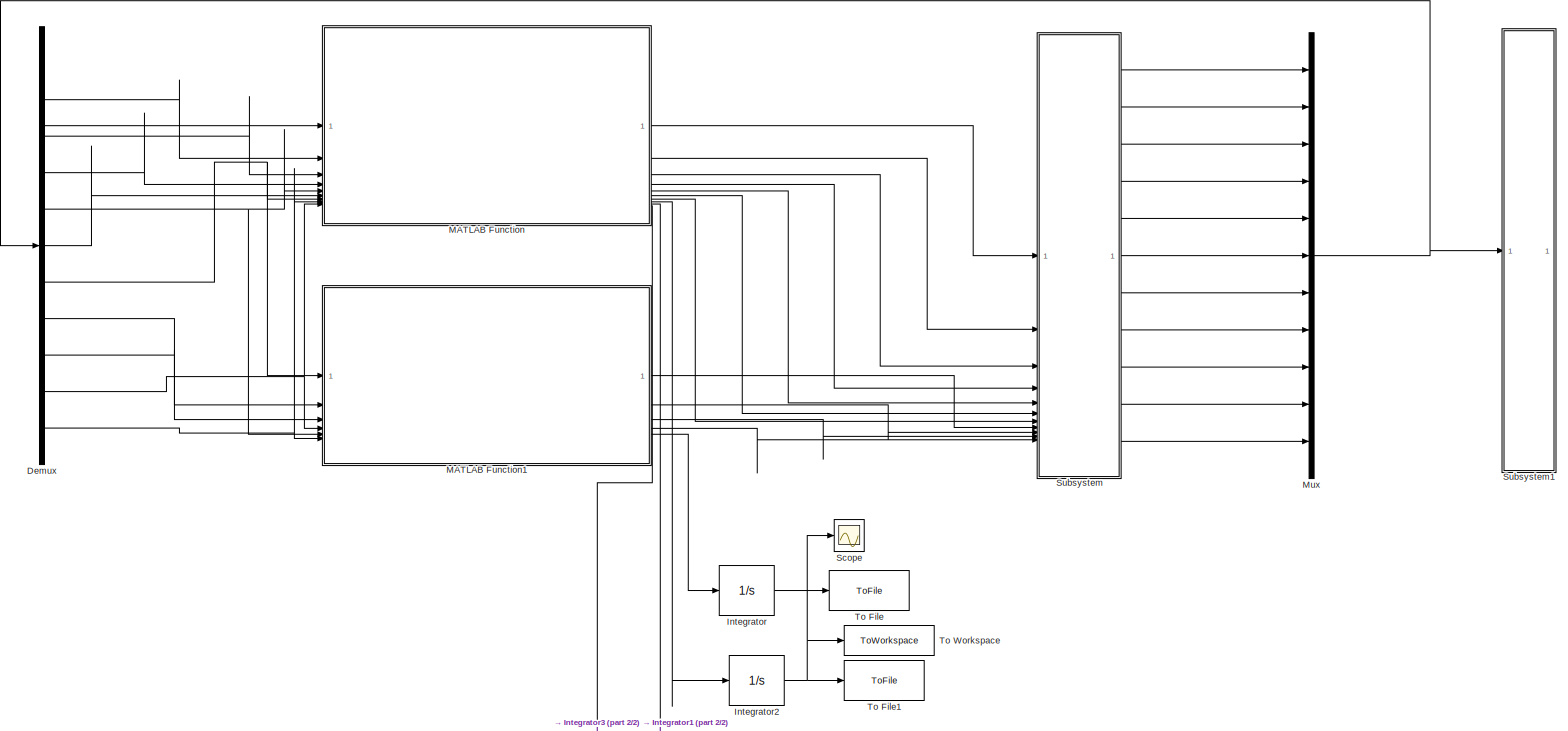
[diagram: root canvas - part 1/2, full width, middle band]
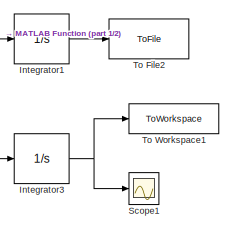
[diagram: root canvas - part 2/2, bottom center region]
MODEL slx_b30c11c2dca4
KIND model
CONFIG AbsTol = auto
CONFIG EnableMultiTasking = off
CONFIG FixedStep = 1
CONFIG MaxStep = auto
CONFIG MinStep = auto
CONFIG RelTol = 1e-3
CONFIG SampleTimeConstraint = Unconstrained
CONFIG SolverName = ode4
CONFIG StartTime = 0.0
CONFIG StopTime = 275
BLOCK [Demux] Demux
  Outputs = 11
BLOCK [Integrator] Integrator
BLOCK [Integrator] Integrator1
BLOCK [Integrator] Integrator2
BLOCK [Integrator] Integrator3
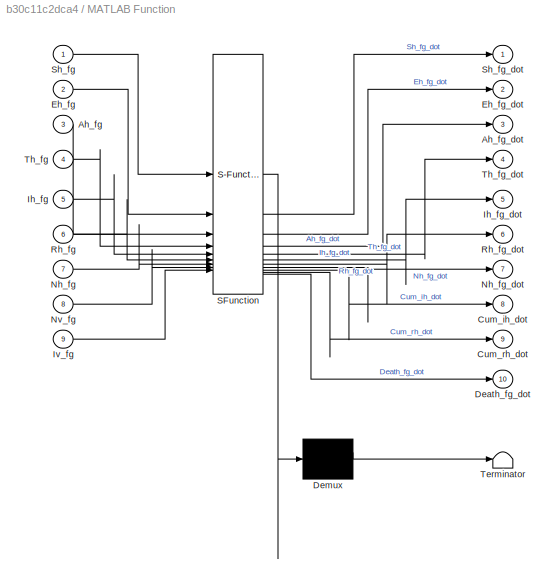
BLOCK [SubSystem] MATLAB Function
  ErrorFcn = Stateflow.Translate.translate
  LibrarySourceBlock = simulink/User-Defined\nFunctions/MATLAB Function
  PermitHierarchicalResolution = ExplicitOnly
  SFBlockType = MATLAB Function
  TreatAsAtomicUnit = on
BLOCK [Demux] MATLAB Function/ Demux 
  Outputs = 1
BLOCK [S-Function] MATLAB Function/ SFunction 
  EnableBusSupport = on
  FunctionName = sf_sfun
  Parameters = Par
  PortCounts = [9 11]
  SFcnIsStateOwnerBlock = off
  SFunctionDeploymentMode = off
  Tag = Stateflow S-Function 2
BLOCK [Terminator] MATLAB Function/ Terminator 
BLOCK [Inport] MATLAB Function/Ah_fg
  Port = 3
BLOCK [Outport] MATLAB Function/Ah_fg_dot
  Port = 3
BLOCK [Outport] MATLAB Function/Cum_ih_dot
  Port = 8
BLOCK [Outport] MATLAB Function/Cum_rh_dot
  Port = 9
BLOCK [Outport] MATLAB Function/Death_fg_dot
  Port = 10
BLOCK [Inport] MATLAB Function/Eh_fg
  Port = 2
BLOCK [Outport] MATLAB Function/Eh_fg_dot
  Port = 2
BLOCK [Inport] MATLAB Function/Ih_fg
  Port = 5
BLOCK [Outport] MATLAB Function/Ih_fg_dot
  Port = 5
BLOCK [Inport] MATLAB Function/Iv_fg
  Port = 9
BLOCK [Inport] MATLAB Function/Nh_fg
  Port = 7
BLOCK [Outport] MATLAB Function/Nh_fg_dot
  Port = 7
BLOCK [Inport] MATLAB Function/Nv_fg
  Port = 8
BLOCK [Inport] MATLAB Function/Rh_fg
  Port = 6
BLOCK [Outport] MATLAB Function/Rh_fg_dot
  Port = 6
BLOCK [Inport] MATLAB Function/Sh_fg
BLOCK [Outport] MATLAB Function/Sh_fg_dot
BLOCK [Inport] MATLAB Function/Th_fg
  Port = 4
BLOCK [Outport] MATLAB Function/Th_fg_dot
  Port = 4
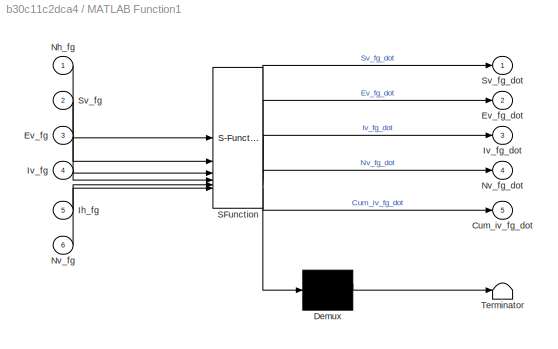
BLOCK [SubSystem] MATLAB Function1
  ErrorFcn = Stateflow.Translate.translate
  LibrarySourceBlock = simulink/User-Defined\nFunctions/MATLAB Function
  PermitHierarchicalResolution = ExplicitOnly
  SFBlockType = MATLAB Function
  TreatAsAtomicUnit = on
BLOCK [Demux] MATLAB Function1/ Demux 
  Outputs = 1
BLOCK [S-Function] MATLAB Function1/ SFunction 
  EnableBusSupport = on
  FunctionName = sf_sfun
  Parameters = Par
  PortCounts = [6 6]
  SFcnIsStateOwnerBlock = off
  SFunctionDeploymentMode = off
  Tag = Stateflow S-Function 1
BLOCK [Terminator] MATLAB Function1/ Terminator 
BLOCK [Outport] MATLAB Function1/Cum_iv_fg_dot
  Port = 5
BLOCK [Inport] MATLAB Function1/Ev_fg
  Port = 3
BLOCK [Outport] MATLAB Function1/Ev_fg_dot
  Port = 2
BLOCK [Inport] MATLAB Function1/Ih_fg
  Port = 5
BLOCK [Inport] MATLAB Function1/Iv_fg
  Port = 4
BLOCK [Outport] MATLAB Function1/Iv_fg_dot
  Port = 3
BLOCK [Inport] MATLAB Function1/Nh_fg
BLOCK [Inport] MATLAB Function1/Nv_fg
  Port = 6
BLOCK [Outport] MATLAB Function1/Nv_fg_dot
  Port = 4
BLOCK [Inport] MATLAB Function1/Sv_fg
  Port = 2
BLOCK [Outport] MATLAB Function1/Sv_fg_dot
BLOCK [Mux] Mux
  DisplayOption = bar
  Inputs = 11
BLOCK [Scope] Scope
  Floating = off
  NumInputPorts = 1
  ScopeSpecificationString = Simulink.scopes.TimeScopeBlockCfg('CurrentConfiguration', extmgr.ConfigurationSet(extmgr.Configuration('Core','General UI',true),extmgr.Configuration('Core','Source UI',true),extmgr.Configuration('Sources','WiredSimulink',true,'DataLoggingVariableName','ScopeData1'),extmgr.Configuration('Visuals','Time Domain',true,'SerializedDisplays',{struct('MinYLimReal','-658.70845','MaxYLimReal','5928.37606',...<+1417ch>
BLOCK [Scope] Scope1
  Floating = off
  NumInputPorts = 1
  ScopeSpecificationString = Simulink.scopes.TimeScopeBlockCfg('CurrentConfiguration', extmgr.ConfigurationSet(extmgr.Configuration('Core','General UI',true),extmgr.Configuration('Core','Source UI',true),extmgr.Configuration('Sources','WiredSimulink',true,'DataLoggingVariableName','ScopeData1'),extmgr.Configuration('Visuals','Time Domain',true,'SerializedDisplays',{struct('MinYLimReal','-240.94935','MaxYLimReal','2168.54414',...<+1417ch>
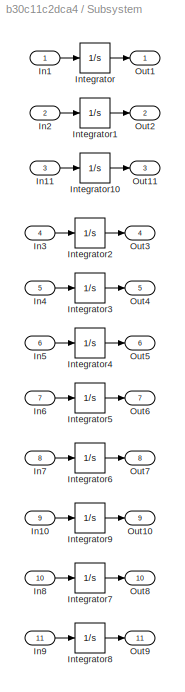
BLOCK [SubSystem] Subsystem
BLOCK [Inport] Subsystem/In1
BLOCK [Inport] Subsystem/In10
  Port = 9
BLOCK [Inport] Subsystem/In11
  Port = 3
BLOCK [Inport] Subsystem/In2
  Port = 2
BLOCK [Inport] Subsystem/In3
  Port = 4
BLOCK [Inport] Subsystem/In4
  Port = 5
BLOCK [Inport] Subsystem/In5
  Port = 6
BLOCK [Inport] Subsystem/In6
  Port = 7
BLOCK [Inport] Subsystem/In7
  Port = 8
BLOCK [Inport] Subsystem/In8
  Port = 10
BLOCK [Inport] Subsystem/In9
  Port = 11
BLOCK [Integrator] Subsystem/Integrator
  InitialCondition = S_w_0
BLOCK [Integrator] Subsystem/Integrator1
  InitialCondition = E_w_0
BLOCK [Integrator] Subsystem/Integrator10
  InitialCondition = A_w_0
BLOCK [Integrator] Subsystem/Integrator2
BLOCK [Integrator] Subsystem/Integrator3
BLOCK [Integrator] Subsystem/Integrator4
BLOCK [Integrator] Subsystem/Integrator5
  InitialCondition = N_w_0
BLOCK [Integrator] Subsystem/Integrator6
  InitialCondition = S_v_0
BLOCK [Integrator] Subsystem/Integrator7
  InitialCondition = I_v_0
BLOCK [Integrator] Subsystem/Integrator8
  InitialCondition = N_v_0
BLOCK [Integrator] Subsystem/Integrator9
  InitialCondition = E_v_0
BLOCK [Outport] Subsystem/Out1
BLOCK [Outport] Subsystem/Out10
  Port = 9
BLOCK [Outport] Subsystem/Out11
  Port = 3
BLOCK [Outport] Subsystem/Out2
  Port = 2
BLOCK [Outport] Subsystem/Out3
  Port = 4
BLOCK [Outport] Subsystem/Out4
  Port = 5
BLOCK [Outport] Subsystem/Out5
  Port = 6
BLOCK [Outport] Subsystem/Out6
  Port = 7
BLOCK [Outport] Subsystem/Out7
  Port = 8
BLOCK [Outport] Subsystem/Out8
  Port = 10
BLOCK [Outport] Subsystem/Out9
  Port = 11
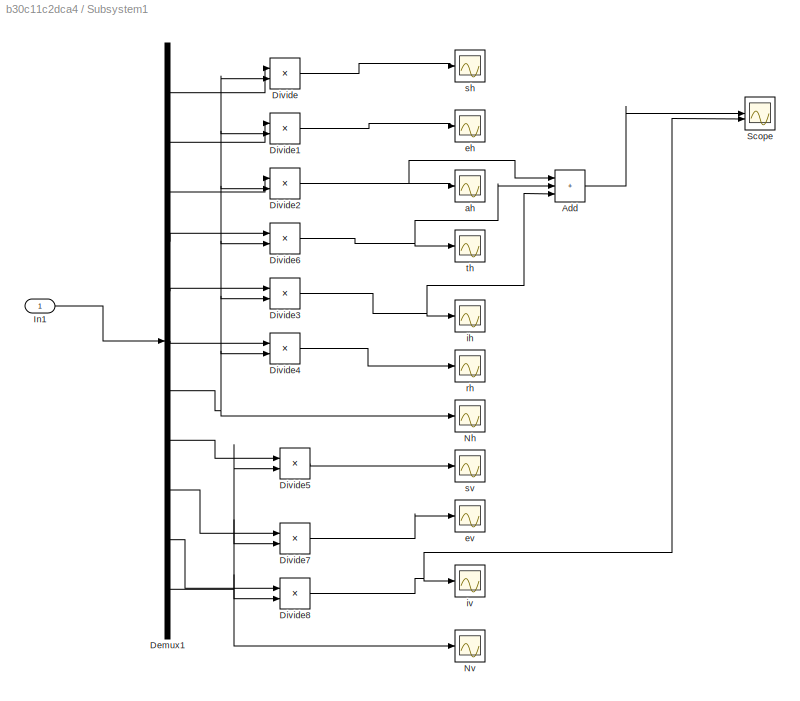
BLOCK [SubSystem] Subsystem1
BLOCK [Sum] Subsystem1/Add
  IconShape = rectangular
  Inputs = +++
BLOCK [Demux] Subsystem1/Demux1
  Outputs = 11
BLOCK [Product] Subsystem1/Divide
  Inputs = */
BLOCK [Product] Subsystem1/Divide1
  Inputs = */
BLOCK [Product] Subsystem1/Divide2
  Inputs = */
BLOCK [Product] Subsystem1/Divide3
  Inputs = */
BLOCK [Product] Subsystem1/Divide4
  Inputs = */
BLOCK [Product] Subsystem1/Divide5
  Inputs = */
BLOCK [Product] Subsystem1/Divide6
  Inputs = */
BLOCK [Product] Subsystem1/Divide7
  Inputs = */
BLOCK [Product] Subsystem1/Divide8
  Inputs = */
BLOCK [Inport] Subsystem1/In1
BLOCK [Scope] Subsystem1/Nh
  Floating = off
  NumInputPorts = 1
  ScopeSpecificationString = Simulink.scopes.TimeScopeBlockCfg('CurrentConfiguration', extmgr.ConfigurationSet(extmgr.Configuration('Core','General UI',true),extmgr.Configuration('Core','Source UI',true),extmgr.Configuration('Sources','WiredSimulink',true,'DataLoggingVariableName','ScopeData6'),extmgr.Configuration('Visuals','Time Domain',true,'SerializedDisplays',{struct('MinYLimReal','5882.49548','MaxYLimReal','8235.29968',...<+1389ch>
BLOCK [Scope] Subsystem1/Nv
  Floating = off
  NumInputPorts = 1
  ScopeSpecificationString = Simulink.scopes.TimeScopeBlockCfg('CurrentConfiguration', extmgr.ConfigurationSet(extmgr.Configuration('Core','General UI',true),extmgr.Configuration('Core','Source UI',true),extmgr.Configuration('Sources','WiredSimulink',true,'DataLoggingVariableName','ScopeData1'),extmgr.Configuration('Visuals','Time Domain',true,'SerializedDisplays',{struct('MinYLimReal','200001.00000','MaxYLimReal','400001.000...<+1431ch>
BLOCK [Scope] Subsystem1/Scope
  Floating = off
  NumInputPorts = 2
  ScopeSpecificationString = Simulink.scopes.TimeScopeBlockCfg('CurrentConfiguration', extmgr.ConfigurationSet(extmgr.Configuration('Core','General UI',true),extmgr.Configuration('Core','Source UI',true),extmgr.Configuration('Sources','WiredSimulink',true,'DataLoggingVariableName','ScopeData9'),extmgr.Configuration('Visuals','Time Domain',true,'SerializedDisplays',{struct('MinYLimReal','-0.0407','MaxYLimReal','0.36629','YLabe...<+1406ch>
BLOCK [Scope] Subsystem1/ah
  Floating = off
  NumInputPorts = 1
  ScopeSpecificationString = Simulink.scopes.TimeScopeBlockCfg('CurrentConfiguration', extmgr.ConfigurationSet(extmgr.Configuration('Core','General UI',true),extmgr.Configuration('Core','Source UI',true),extmgr.Configuration('Sources','WiredSimulink',true,'DataLoggingVariableName','ScopeData2'),extmgr.Configuration('Visuals','Time Domain',true,'SerializedDisplays',{struct('MinYLimReal','-0.01699','MaxYLimReal','0.1529','YLabe...<+1397ch>
BLOCK [Scope] Subsystem1/eh
  Floating = off
  NumInputPorts = 1
  ScopeSpecificationString = Simulink.scopes.TimeScopeBlockCfg('CurrentConfiguration', extmgr.ConfigurationSet(extmgr.Configuration('Core','General UI',true),extmgr.Configuration('Core','Source UI',true),extmgr.Configuration('Sources','WiredSimulink',true,'DataLoggingVariableName','ScopeData1'),extmgr.Configuration('Visuals','Time Domain',true,'SerializedDisplays',{struct('MinYLimReal','-0.01989','MaxYLimReal','0.17898','YLab...<+1403ch>
BLOCK [Scope] Subsystem1/ev
  Floating = off
  NumInputPorts = 1
  ScopeSpecificationString = Simulink.scopes.TimeScopeBlockCfg('CurrentConfiguration', extmgr.ConfigurationSet(extmgr.Configuration('Core','General UI',true),extmgr.Configuration('Core','Source UI',true),extmgr.Configuration('Sources','WiredSimulink',true,'DataLoggingVariableName','ScopeData1'),extmgr.Configuration('Visuals','Time Domain',true,'SerializedDisplays',{struct('MinYLimReal','-0.105','MaxYLimReal','1.06517','YLabel...<+1410ch>
BLOCK [Scope] Subsystem1/ih
  Floating = off
  NumInputPorts = 1
  ScopeSpecificationString = Simulink.scopes.TimeScopeBlockCfg('CurrentConfiguration', extmgr.ConfigurationSet(extmgr.Configuration('Core','General UI',true),extmgr.Configuration('Core','Source UI',true),extmgr.Configuration('Sources','WiredSimulink',true,'DataLoggingVariableName','ScopeData4'),extmgr.Configuration('Visuals','Time Domain',true,'SerializedDisplays',{struct('MinYLimReal','-0.00517','MaxYLimReal','0.04656','YLab...<+1402ch>
BLOCK [Scope] Subsystem1/iv
  Floating = off
  NumInputPorts = 1
  ScopeSpecificationString = Simulink.scopes.TimeScopeBlockCfg('CurrentConfiguration', extmgr.ConfigurationSet(extmgr.Configuration('Core','General UI',true),extmgr.Configuration('Core','Source UI',true),extmgr.Configuration('Sources','WiredSimulink',true,'DataLoggingVariableName','ScopeData8'),extmgr.Configuration('Visuals','Time Domain',true,'SerializedDisplays',{struct('MinYLimReal','-0.04069','MaxYLimReal','0.36629','YLab...<+1366ch>
BLOCK [Scope] Subsystem1/rh
  Floating = off
  NumInputPorts = 1
  ScopeSpecificationString = Simulink.scopes.TimeScopeBlockCfg('CurrentConfiguration', extmgr.ConfigurationSet(extmgr.Configuration('Core','General UI',true),extmgr.Configuration('Core','Source UI',true),extmgr.Configuration('Sources','WiredSimulink',true,'DataLoggingVariableName','ScopeData5'),extmgr.Configuration('Visuals','Time Domain',true,'SerializedDisplays',{struct('MinYLimReal','0.45491','MaxYLimReal','1.06057','YLabe...<+1419ch>
BLOCK [Scope] Subsystem1/sh
  Floating = off
  NumInputPorts = 1
  ScopeSpecificationString = Simulink.scopes.TimeScopeBlockCfg('CurrentConfiguration', extmgr.ConfigurationSet(extmgr.Configuration('Core','General UI',true),extmgr.Configuration('Core','Source UI',true),extmgr.Configuration('Sources','WiredSimulink',true),extmgr.Configuration('Visuals','Time Domain',true,'SerializedDisplays',{struct('MinYLimReal','-0.12496','MaxYLimReal','1.125','YLabelReal','','MinYLimMag','0.00000','MaxYLi...<+1318ch>
BLOCK [Scope] Subsystem1/sv
  Floating = off
  NumInputPorts = 1
  ScopeSpecificationString = Simulink.scopes.TimeScopeBlockCfg('CurrentConfiguration', extmgr.ConfigurationSet(extmgr.Configuration('Core','General UI',true),extmgr.Configuration('Core','Source UI',true),extmgr.Configuration('Sources','WiredSimulink',true,'DataLoggingVariableName','ScopeData7'),extmgr.Configuration('Visuals','Time Domain',true,'SerializedDisplays',{struct('MinYLimReal','-0.105','MaxYLimReal','1.06517','YLabel...<+1410ch>
BLOCK [Scope] Subsystem1/th
  Floating = off
  NumInputPorts = 1
  ScopeSpecificationString = Simulink.scopes.TimeScopeBlockCfg('CurrentConfiguration', extmgr.ConfigurationSet(extmgr.Configuration('Core','General UI',true),extmgr.Configuration('Core','Source UI',true),extmgr.Configuration('Sources','WiredSimulink',true,'DataLoggingVariableName','ScopeData3'),extmgr.Configuration('Visuals','Time Domain',true,'SerializedDisplays',{struct('MinYLimReal','-0.00091','MaxYLimReal','0.00822','YLab...<+1425ch>
BLOCK [ToFile] To File
  Filename = Dati cumulativi Iv fg
  MatrixName = Cum_iv
  SampleTime = 1
BLOCK [ToFile] To File1
  Filename = Dati cumulativi ih fg
  MatrixName = Cum_ih
  SampleTime = 1
BLOCK [ToFile] To File2
  Filename = Dati cumulativi rh fg
  MatrixName = Cum_rh
  SampleTime = 1
BLOCK [ToWorkspace] To Workspace
  FixptAsFi = on
  MaxDataPoints = inf
  SampleTime = 1
  SaveFormat = Timeseries
  VariableName = cum_inf_hum_fg
BLOCK [ToWorkspace] To Workspace1
  FixptAsFi = on
  MaxDataPoints = inf
  SampleTime = 1
  VariableName = dead_fg
LINE Demux:1 -> MATLAB Function:1
NET Demux:10 -> MATLAB Function1:4, MATLAB Function:9
NET Demux:11 -> MATLAB Function1:6, MATLAB Function:8
LINE Demux:2 -> MATLAB Function:2
LINE Demux:3 -> MATLAB Function:3
LINE Demux:4 -> MATLAB Function:4
NET Demux:5 -> MATLAB Function1:5, MATLAB Function:5
LINE Demux:6 -> MATLAB Function:6
NET Demux:7 -> MATLAB Function1:1, MATLAB Function:7
LINE Demux:8 -> MATLAB Function1:2
LINE Demux:9 -> MATLAB Function1:3
LINE Integrator1:1 -> To File2:1
NET Integrator2:1 -> Scope:1, To File1:1, To Workspace:1
NET Integrator3:1 -> Scope1:1, To Workspace1:1
LINE Integrator:1 -> To File:1
LINE MATLAB Function1:1 -> Subsystem:8
LINE MATLAB Function1:2 -> Subsystem:9
LINE MATLAB Function1:3 -> Subsystem:10
LINE MATLAB Function1:4 -> Subsystem:11
LINE MATLAB Function1:5 -> Integrator:1
LINE MATLAB Function:1 -> Subsystem:1
LINE MATLAB Function:10 -> Integrator3:1
LINE MATLAB Function:2 -> Subsystem:2
LINE MATLAB Function:3 -> Subsystem:3
LINE MATLAB Function:4 -> Subsystem:4
LINE MATLAB Function:5 -> Subsystem:5
LINE MATLAB Function:6 -> Subsystem:6
LINE MATLAB Function:7 -> Subsystem:7
LINE MATLAB Function:8 -> Integrator2:1
LINE MATLAB Function:9 -> Integrator1:1
NET Mux:1 -> Demux:1, Subsystem1:1
LINE Subsystem/In10:1 -> Subsystem/Integrator9:1
LINE Subsystem/In11:1 -> Subsystem/Integrator10:1
LINE Subsystem/In1:1 -> Subsystem/Integrator:1
LINE Subsystem/In2:1 -> Subsystem/Integrator1:1
LINE Subsystem/In3:1 -> Subsystem/Integrator2:1
LINE Subsystem/In4:1 -> Subsystem/Integrator3:1
LINE Subsystem/In5:1 -> Subsystem/Integrator4:1
LINE Subsystem/In6:1 -> Subsystem/Integrator5:1
LINE Subsystem/In7:1 -> Subsystem/Integrator6:1
LINE Subsystem/In8:1 -> Subsystem/Integrator7:1
LINE Subsystem/In9:1 -> Subsystem/Integrator8:1
LINE Subsystem/Integrator10:1 -> Subsystem/Out11:1
LINE Subsystem/Integrator1:1 -> Subsystem/Out2:1
LINE Subsystem/Integrator2:1 -> Subsystem/Out3:1
LINE Subsystem/Integrator3:1 -> Subsystem/Out4:1
LINE Subsystem/Integrator4:1 -> Subsystem/Out5:1
LINE Subsystem/Integrator5:1 -> Subsystem/Out6:1
LINE Subsystem/Integrator6:1 -> Subsystem/Out7:1
LINE Subsystem/Integrator7:1 -> Subsystem/Out8:1
LINE Subsystem/Integrator8:1 -> Subsystem/Out9:1
LINE Subsystem/Integrator9:1 -> Subsystem/Out10:1
LINE Subsystem/Integrator:1 -> Subsystem/Out1:1
LINE Subsystem1/Add:1 -> Subsystem1/Scope:1
LINE Subsystem1/Demux1:1 -> Subsystem1/Divide:1
LINE Subsystem1/Demux1:10 -> Subsystem1/Divide8:1
NET Subsystem1/Demux1:11 -> Subsystem1/Divide5:2, Subsystem1/Divide7:2, Subsystem1/Divide8:2, Subsystem1/Nv:1
LINE Subsystem1/Demux1:2 -> Subsystem1/Divide1:1
LINE Subsystem1/Demux1:3 -> Subsystem1/Divide2:1
LINE Subsystem1/Demux1:4 -> Subsystem1/Divide6:1
LINE Subsystem1/Demux1:5 -> Subsystem1/Divide3:1
LINE Subsystem1/Demux1:6 -> Subsystem1/Divide4:1
NET Subsystem1/Demux1:7 -> Subsystem1/Divide1:2, Subsystem1/Divide2:2, Subsystem1/Divide3:2, Subsystem1/Divide4:2, Subsystem1/Divide6:2, Subsystem1/Divide:2, Subsystem1/Nh:1
LINE Subsystem1/Demux1:8 -> Subsystem1/Divide5:1
LINE Subsystem1/Demux1:9 -> Subsystem1/Divide7:1
LINE Subsystem1/Divide1:1 -> Subsystem1/eh:1
NET Subsystem1/Divide2:1 -> Subsystem1/Add:1, Subsystem1/ah:1
NET Subsystem1/Divide3:1 -> Subsystem1/Add:3, Subsystem1/ih:1
LINE Subsystem1/Divide4:1 -> Subsystem1/rh:1
LINE Subsystem1/Divide5:1 -> Subsystem1/sv:1
NET Subsystem1/Divide6:1 -> Subsystem1/Add:2, Subsystem1/th:1
LINE Subsystem1/Divide7:1 -> Subsystem1/ev:1
NET Subsystem1/Divide8:1 -> Subsystem1/Scope:2, Subsystem1/iv:1
LINE Subsystem1/Divide:1 -> Subsystem1/sh:1
LINE Subsystem1/In1:1 -> Subsystem1/Demux1:1
LINE Subsystem:1 -> Mux:1
LINE Subsystem:10 -> Mux:10
LINE Subsystem:11 -> Mux:11
LINE Subsystem:2 -> Mux:2
LINE Subsystem:3 -> Mux:3
LINE Subsystem:4 -> Mux:4
LINE Subsystem:5 -> Mux:5
LINE Subsystem:6 -> Mux:6
LINE Subsystem:7 -> Mux:7
LINE Subsystem:8 -> Mux:8
LINE Subsystem:9 -> Mux:9
note: NET lines group one-source signal fan-out (src -> all destinations, sorted); 1:1 wires keep LINE
CHART MATLAB Function1 states=1 transitions=1
  STATE_LABEL 'eML_blk_kernel()'
  STATE_LABEL 'SCRIPT:\nfunction [Sv_fg_dot, Ev_fg_dot, Iv_fg_dot, Nv_fg_dot, Cum_iv_fg_dot]= Mosquitoes(Nh_fg,Sv_fg, ...\n    Ev_fg, Iv_fg, Ih_fg, Nv_fg, Par)\n%% Parametri\n\nbeta_1_fg = Par(1);\nbeta_2_fg = Par(2);\ngamma_h_fg = Par(3); \ntheta_fg  = Par(4);\nb_h_fg = Par(5);\nb_v_fg = Par(6);\na_fg = Par(7);\ndelta_fg = Par(8);\nalpha_fg = Par(9);\nepsilon_fg = Par(10);\nrho_fg = Par(11); \nsigma_fg = Par(12); \nmu_h_fg = Pa...<+585ch>'
CHART MATLAB Function states=1 transitions=1
  STATE_LABEL 'eML_blk_kernel()'
  STATE_LABEL 'SCRIPT:\nfunction [Sh_fg_dot,Eh_fg_dot,Ah_fg_dot,Th_fg_dot,Ih_fg_dot,Rh_fg_dot,Nh_fg_dot,Cum_ih_dot,Cum_rh_dot,Death_fg_dot] = ...\nHumans(Sh_fg,Eh_fg,Ah_fg,Th_fg,Ih_fg,Rh_fg,Nh_fg, Nv_fg,Iv_fg, Par)\n%% Parametri\n\nbeta_1_fg = Par(1);\nbeta_2_fg = Par(2);\ngamma_h_fg = Par(3); \ntheta_fg  = Par(4);\nb_h_fg = Par(5);\nb_v_fg = Par(6);\na_fg = Par(7);\ndelta_fg = Par(8);\nalpha_fg = Par(9);\nepsilon_fg = Par(10...<+1761ch>'
CHART  states=0 transitions=0
CHART  states=0 transitions=0
